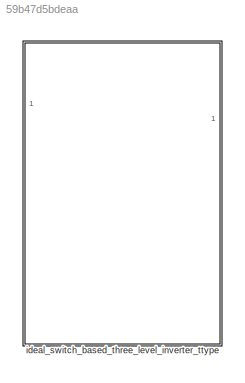
MODEL slx_59b47d5bdeaa
KIND library
CONFIG AbsTol = auto
CONFIG EnableMultiTasking = off
CONFIG FixedStep = auto
CONFIG MaxStep = auto
CONFIG MinStep = auto
CONFIG RelTol = 1e-3
CONFIG SampleTimeConstraint = Unconstrained
CONFIG SolverName = VariableStepAuto
CONFIG StartTime = 0.0
CONFIG StopTime = 10.0
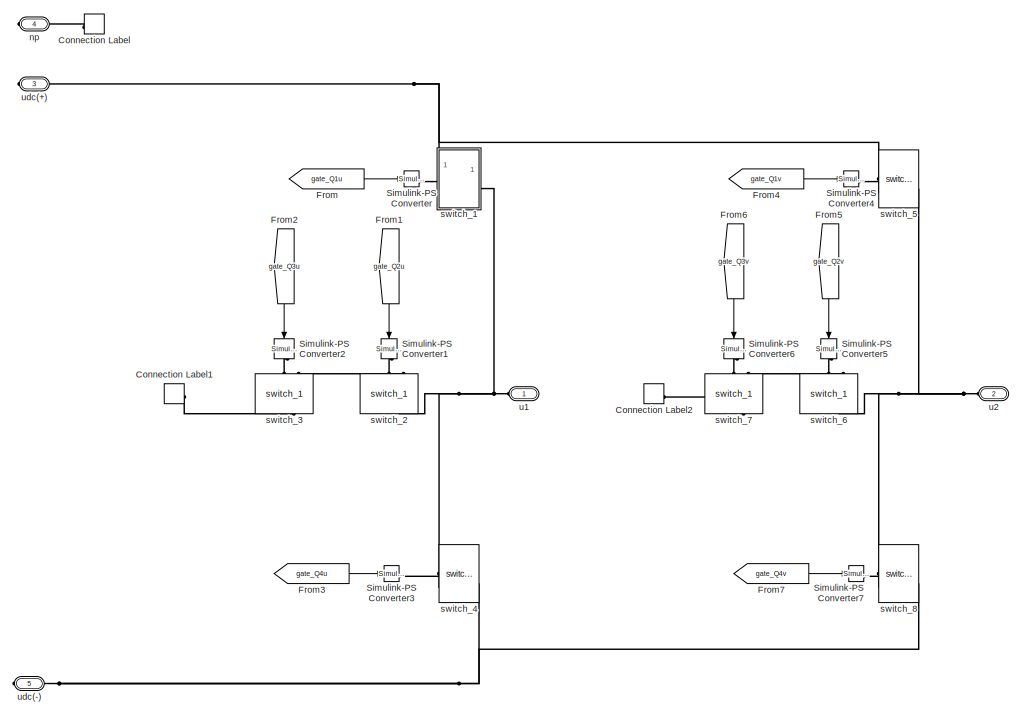
[diagram: ideal_switch_based_three_level_inverter_ttype - part 1/3, center side, full height]
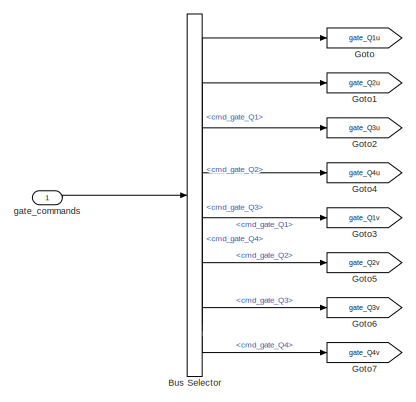
[diagram: ideal_switch_based_three_level_inverter_ttype - part 2/3, middle left region]
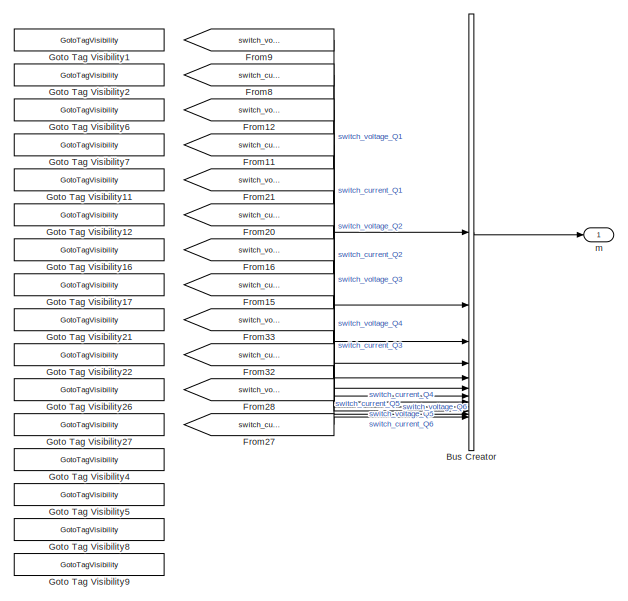
[diagram: ideal_switch_based_three_level_inverter_ttype - part 3/3, right side, full height]
BLOCK [SubSystem] ideal_switch_based_three_level_inverter_ttype
BLOCK [BusCreator] ideal_switch_based_three_level_inverter_ttype/Bus Creator
  DisplayOption = bar
  InheritFromInputs = on
  Inputs = 12
BLOCK [BusSelector] ideal_switch_based_three_level_inverter_ttype/Bus Selector
  OutputSignals = gate_cmds_ph1.cmd_gate_Q1,gate_cmds_ph1.cmd_gate_Q2,gate_cmds_ph1.cmd_gate_Q3,gate_cmds_ph1.cmd_gate_Q4,gate_cmds_ph2.cmd_gate_Q1,gate_cmds_ph2.cmd_gate_Q2,gate_cmds_ph2.cmd_gate_Q3,gate_cmds_ph2.cmd_gate_Q4
BLOCK [ConnectionLabel] ideal_switch_based_three_level_inverter_ttype/Connection Label
  Label = np
BLOCK [ConnectionLabel] ideal_switch_based_three_level_inverter_ttype/Connection Label1
  Label = np
  NameLocation = top
BLOCK [ConnectionLabel] ideal_switch_based_three_level_inverter_ttype/Connection Label2
  Label = np
  NameLocation = top
BLOCK [From] ideal_switch_based_three_level_inverter_ttype/From
  GotoTag = gate_Q1u
BLOCK [From] ideal_switch_based_three_level_inverter_ttype/From1
  GotoTag = gate_Q2u
  NameLocation = left
BLOCK [From] ideal_switch_based_three_level_inverter_ttype/From11
  GotoTag = switch_current_Q2
  TagVisibility = scoped
BLOCK [From] ideal_switch_based_three_level_inverter_ttype/From12
  GotoTag = switch_voltage_Q2
  TagVisibility = scoped
BLOCK [From] ideal_switch_based_three_level_inverter_ttype/From15
  GotoTag = switch_current_Q4
  TagVisibility = scoped
BLOCK [From] ideal_switch_based_three_level_inverter_ttype/From16
  GotoTag = switch_voltage_Q4
  TagVisibility = scoped
BLOCK [From] ideal_switch_based_three_level_inverter_ttype/From2
  GotoTag = gate_Q3u
  NameLocation = left
BLOCK [From] ideal_switch_based_three_level_inverter_ttype/From20
  GotoTag = switch_current_Q3
  TagVisibility = scoped
BLOCK [From] ideal_switch_based_three_level_inverter_ttype/From21
  GotoTag = switch_voltage_Q3
  TagVisibility = scoped
BLOCK [From] ideal_switch_based_three_level_inverter_ttype/From27
  GotoTag = switch_current_Q6
  TagVisibility = scoped
BLOCK [From] ideal_switch_based_three_level_inverter_ttype/From28
  GotoTag = switch_voltage_Q6
  TagVisibility = scoped
BLOCK [From] ideal_switch_based_three_level_inverter_ttype/From3
  GotoTag = gate_Q4u
  NameLocation = top
BLOCK [From] ideal_switch_based_three_level_inverter_ttype/From32
  GotoTag = switch_current_Q5
  TagVisibility = scoped
BLOCK [From] ideal_switch_based_three_level_inverter_ttype/From33
  GotoTag = switch_voltage_Q5
  TagVisibility = scoped
BLOCK [From] ideal_switch_based_three_level_inverter_ttype/From4
  GotoTag = gate_Q1v
BLOCK [From] ideal_switch_based_three_level_inverter_ttype/From5
  GotoTag = gate_Q2v
  NameLocation = left
BLOCK [From] ideal_switch_based_three_level_inverter_ttype/From6
  GotoTag = gate_Q3v
  NameLocation = left
BLOCK [From] ideal_switch_based_three_level_inverter_ttype/From7
  GotoTag = gate_Q4v
  NameLocation = top
BLOCK [From] ideal_switch_based_three_level_inverter_ttype/From8
  GotoTag = switch_current_Q1
BLOCK [From] ideal_switch_based_three_level_inverter_ttype/From9
  GotoTag = switch_voltage_Q1
BLOCK [Goto] ideal_switch_based_three_level_inverter_ttype/Goto
  GotoTag = gate_Q1u
BLOCK [GotoTagVisibility] ideal_switch_based_three_level_inverter_ttype/Goto Tag Visibility1
  GotoTag = switch_voltage_Q1
BLOCK [GotoTagVisibility] ideal_switch_based_three_level_inverter_ttype/Goto Tag Visibility11
  GotoTag = switch_voltage_Q3
BLOCK [GotoTagVisibility] ideal_switch_based_three_level_inverter_ttype/Goto Tag Visibility12
  GotoTag = switch_current_Q3
BLOCK [GotoTagVisibility] ideal_switch_based_three_level_inverter_ttype/Goto Tag Visibility16
  GotoTag = switch_voltage_Q4
BLOCK [GotoTagVisibility] ideal_switch_based_three_level_inverter_ttype/Goto Tag Visibility17
  GotoTag = switch_current_Q4
BLOCK [GotoTagVisibility] ideal_switch_based_three_level_inverter_ttype/Goto Tag Visibility2
  GotoTag = switch_current_Q1
BLOCK [GotoTagVisibility] ideal_switch_based_three_level_inverter_ttype/Goto Tag Visibility21
  GotoTag = switch_voltage_Q5
BLOCK [GotoTagVisibility] ideal_switch_based_three_level_inverter_ttype/Goto Tag Visibility22
  GotoTag = switch_current_Q5
BLOCK [GotoTagVisibility] ideal_switch_based_three_level_inverter_ttype/Goto Tag Visibility26
  GotoTag = switch_voltage_Q6
BLOCK [GotoTagVisibility] ideal_switch_based_three_level_inverter_ttype/Goto Tag Visibility27
  GotoTag = switch_current_Q6
BLOCK [GotoTagVisibility] ideal_switch_based_three_level_inverter_ttype/Goto Tag Visibility4
  GotoTag = switch_voltage_Q7
BLOCK [GotoTagVisibility] ideal_switch_based_three_level_inverter_ttype/Goto Tag Visibility5
  GotoTag = switch_current_Q7
BLOCK [GotoTagVisibility] ideal_switch_based_three_level_inverter_ttype/Goto Tag Visibility6
  GotoTag = switch_voltage_Q2
BLOCK [GotoTagVisibility] ideal_switch_based_three_level_inverter_ttype/Goto Tag Visibility7
  GotoTag = switch_current_Q2
BLOCK [GotoTagVisibility] ideal_switch_based_three_level_inverter_ttype/Goto Tag Visibility8
  GotoTag = switch_voltage_Q8
BLOCK [GotoTagVisibility] ideal_switch_based_three_level_inverter_ttype/Goto Tag Visibility9
  GotoTag = switch_current_Q8
BLOCK [Goto] ideal_switch_based_three_level_inverter_ttype/Goto1
  GotoTag = gate_Q2u
BLOCK [Goto] ideal_switch_based_three_level_inverter_ttype/Goto2
  GotoTag = gate_Q3u
BLOCK [Goto] ideal_switch_based_three_level_inverter_ttype/Goto3
  GotoTag = gate_Q1v
BLOCK [Goto] ideal_switch_based_three_level_inverter_ttype/Goto4
  GotoTag = gate_Q4u
BLOCK [Goto] ideal_switch_based_three_level_inverter_ttype/Goto5
  GotoTag = gate_Q2v
BLOCK [Goto] ideal_switch_based_three_level_inverter_ttype/Goto6
  GotoTag = gate_Q3v
BLOCK [Goto] ideal_switch_based_three_level_inverter_ttype/Goto7
  GotoTag = gate_Q4v
BLOCK [Reference] ideal_switch_based_three_level_inverter_ttype/Simulink-PS Converter  REF=nesl_utility/Simulink-PS
Converter
  SourceBlock = nesl_utility/Simulink-PS\nConverter
  SourceType = Simulink-PS\nConverter
BLOCK [Reference] ideal_switch_based_three_level_inverter_ttype/Simulink-PS Converter1  REF=nesl_utility/Simulink-PS
Converter
  NameLocation = top
  SourceBlock = nesl_utility/Simulink-PS\nConverter
  SourceType = Simulink-PS\nConverter
BLOCK [Reference] ideal_switch_based_three_level_inverter_ttype/Simulink-PS Converter2  REF=nesl_utility/Simulink-PS
Converter
  NameLocation = right
  SourceBlock = nesl_utility/Simulink-PS\nConverter
  SourceType = Simulink-PS\nConverter
BLOCK [Reference] ideal_switch_based_three_level_inverter_ttype/Simulink-PS Converter3  REF=nesl_utility/Simulink-PS
Converter
  NameLocation = top
  SourceBlock = nesl_utility/Simulink-PS\nConverter
  SourceType = Simulink-PS\nConverter
BLOCK [Reference] ideal_switch_based_three_level_inverter_ttype/Simulink-PS Converter4  REF=nesl_utility/Simulink-PS
Converter
  SourceBlock = nesl_utility/Simulink-PS\nConverter
  SourceType = Simulink-PS\nConverter
BLOCK [Reference] ideal_switch_based_three_level_inverter_ttype/Simulink-PS Converter5  REF=nesl_utility/Simulink-PS
Converter
  NameLocation = top
  SourceBlock = nesl_utility/Simulink-PS\nConverter
  SourceType = Simulink-PS\nConverter
BLOCK [Reference] ideal_switch_based_three_level_inverter_ttype/Simulink-PS Converter6  REF=nesl_utility/Simulink-PS
Converter
  NameLocation = right
  SourceBlock = nesl_utility/Simulink-PS\nConverter
  SourceType = Simulink-PS\nConverter
BLOCK [Reference] ideal_switch_based_three_level_inverter_ttype/Simulink-PS Converter7  REF=nesl_utility/Simulink-PS
Converter
  NameLocation = top
  SourceBlock = nesl_utility/Simulink-PS\nConverter
  SourceType = Simulink-PS\nConverter
BLOCK [Inport] ideal_switch_based_three_level_inverter_ttype/gate_commands
BLOCK [Outport] ideal_switch_based_three_level_inverter_ttype/m
BLOCK [PMIOPort] ideal_switch_based_three_level_inverter_ttype/np
  Port = 4
  Side = Right
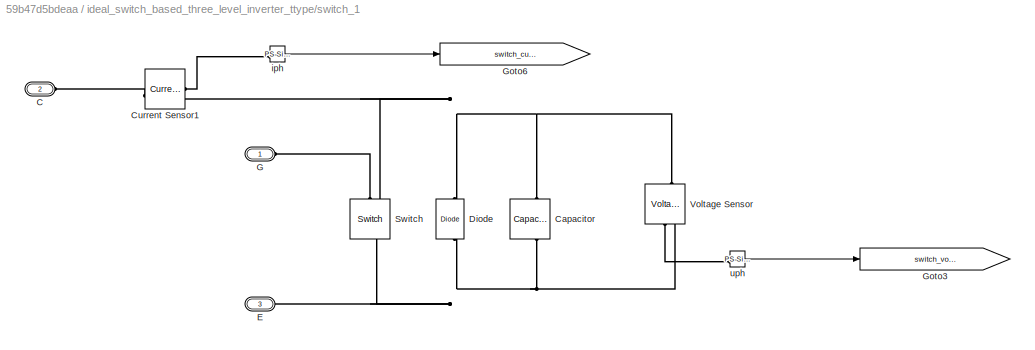
BLOCK [SubSystem] ideal_switch_based_three_level_inverter_ttype/switch_1
  NameLocation = right
  PortSchema = {"entries":[{"content":{"sides":[{"content":{"connectorIds":["LConn1"]},"type":"ConnectorPlacement.EquallySpacedRectSide","uuid":"9277da8d-d460-43e6-8478-dd662f15d226"},{"content":{"connectorIds":[],"side":"RIGHT"},"type":"ConnectorPlacement.EquallySpacedRectSide","uuid":"a7ece396-f1d9-4f4f-a05b-db1fc65d6e1d"},{"content":{"connectorIds":["LConn2"],"side":"TOP"},"type":"ConnectorPlacement.EquallySp...<+397ch>
BLOCK [PMIOPort] ideal_switch_based_three_level_inverter_ttype/switch_1/C
  NameLocation = top
  Port = 2
  Side = Left
BLOCK [Reference] ideal_switch_based_three_level_inverter_ttype/switch_1/Capacitor  REF=fl_lib/Electrical/Electrical Elements/Capacitor
  NameLocation = left
  SourceBlock = fl_lib/Electrical/Electrical Elements/Capacitor
  SourceType = Capacitor
BLOCK [Reference] ideal_switch_based_three_level_inverter_ttype/switch_1/Current Sensor1  REF=fl_lib/Electrical/Electrical Sensors/Current Sensor
  SourceBlock = fl_lib/Electrical/Electrical Sensors/Current Sensor
  SourceType = Current Sensor
BLOCK [Reference] ideal_switch_based_three_level_inverter_ttype/switch_1/Diode  REF=fl_lib/Electrical/Electrical Elements/Diode
  NameLocation = right
  SourceBlock = fl_lib/Electrical/Electrical Elements/Diode
  SourceType = Diode
BLOCK [PMIOPort] ideal_switch_based_three_level_inverter_ttype/switch_1/E
  NameLocation = top
  Port = 3
  Side = Right
BLOCK [PMIOPort] ideal_switch_based_three_level_inverter_ttype/switch_1/G
  NameLocation = top
  Side = Left
BLOCK [Goto] ideal_switch_based_three_level_inverter_ttype/switch_1/Goto3
  GotoTag = switch_voltage_Q1
  TagVisibility = scoped
BLOCK [Goto] ideal_switch_based_three_level_inverter_ttype/switch_1/Goto6
  GotoTag = switch_current_Q1
  TagVisibility = scoped
BLOCK [Reference] ideal_switch_based_three_level_inverter_ttype/switch_1/Switch  REF=fl_lib/Electrical/Electrical Elements/Switch
  NameLocation = left
  SourceBlock = fl_lib/Electrical/Electrical Elements/Switch
  SourceType = Switch
BLOCK [Reference] ideal_switch_based_three_level_inverter_ttype/switch_1/Voltage Sensor  REF=fl_lib/Electrical/Electrical Sensors/Voltage Sensor
  NameLocation = right
  SourceBlock = fl_lib/Electrical/Electrical Sensors/Voltage Sensor
  SourceType = Voltage Sensor
BLOCK [Reference] ideal_switch_based_three_level_inverter_ttype/switch_1/iph  REF=nesl_utility/PS-Simulink
Converter
  SourceBlock = nesl_utility/PS-Simulink\nConverter
  SourceType = PS-Simulink\nConverter
BLOCK [Reference] ideal_switch_based_three_level_inverter_ttype/switch_1/uph  REF=nesl_utility/PS-Simulink
Converter
  SourceBlock = nesl_utility/PS-Simulink\nConverter
  SourceType = PS-Simulink\nConverter
BLOCK [Reference] ideal_switch_based_three_level_inverter_ttype/switch_2  REF=$bdroot/ideal_switch_based_three_level_inverter_ttype/switch_1
  SourceBlock = $bdroot/ideal_switch_based_three_level_inverter_ttype/switch_1
  SourceType = SubSystem
BLOCK [Reference] ideal_switch_based_three_level_inverter_ttype/switch_3  REF=$bdroot/ideal_switch_based_three_level_inverter_ttype/switch_1
  SourceBlock = $bdroot/ideal_switch_based_three_level_inverter_ttype/switch_1
  SourceType = SubSystem
BLOCK [Reference] ideal_switch_based_three_level_inverter_ttype/switch_4  REF=$bdroot/ideal_switch_based_three_level_inverter_ttype/switch_1
  NameLocation = right
  SourceBlock = $bdroot/ideal_switch_based_three_level_inverter_ttype/switch_1
  SourceType = SubSystem
BLOCK [Reference] ideal_switch_based_three_level_inverter_ttype/switch_5  REF=$bdroot/ideal_switch_based_three_level_inverter_ttype/switch_1
  NameLocation = right
  SourceBlock = $bdroot/ideal_switch_based_three_level_inverter_ttype/switch_1
  SourceType = SubSystem
BLOCK [Reference] ideal_switch_based_three_level_inverter_ttype/switch_6  REF=$bdroot/ideal_switch_based_three_level_inverter_ttype/switch_1
  SourceBlock = $bdroot/ideal_switch_based_three_level_inverter_ttype/switch_1
  SourceType = SubSystem
BLOCK [Reference] ideal_switch_based_three_level_inverter_ttype/switch_7  REF=$bdroot/ideal_switch_based_three_level_inverter_ttype/switch_1
  SourceBlock = $bdroot/ideal_switch_based_three_level_inverter_ttype/switch_1
  SourceType = SubSystem
BLOCK [Reference] ideal_switch_based_three_level_inverter_ttype/switch_8  REF=$bdroot/ideal_switch_based_three_level_inverter_ttype/switch_1
  NameLocation = right
  SourceBlock = $bdroot/ideal_switch_based_three_level_inverter_ttype/switch_1
  SourceType = SubSystem
BLOCK [PMIOPort] ideal_switch_based_three_level_inverter_ttype/u1
  Side = Left
BLOCK [PMIOPort] ideal_switch_based_three_level_inverter_ttype/u2
  Port = 2
  Side = Left
BLOCK [PMIOPort] ideal_switch_based_three_level_inverter_ttype/udc(+)
  Port = 3
  Side = Right
BLOCK [PMIOPort] ideal_switch_based_three_level_inverter_ttype/udc(-)
  Port = 5
  Side = Right
LINE ideal_switch_based_three_level_inverter_ttype/Bus Creator:1 -> ideal_switch_based_three_level_inverter_ttype/m:1
LINE ideal_switch_based_three_level_inverter_ttype/Bus Selector:1 -> ideal_switch_based_three_level_inverter_ttype/Goto:1
LINE ideal_switch_based_three_level_inverter_ttype/Bus Selector:2 -> ideal_switch_based_three_level_inverter_ttype/Goto1:1
LINE ideal_switch_based_three_level_inverter_ttype/Bus Selector:3 -> ideal_switch_based_three_level_inverter_ttype/Goto2:1
LINE ideal_switch_based_three_level_inverter_ttype/Bus Selector:4 -> ideal_switch_based_three_level_inverter_ttype/Goto4:1
LINE ideal_switch_based_three_level_inverter_ttype/Bus Selector:5 -> ideal_switch_based_three_level_inverter_ttype/Goto3:1
LINE ideal_switch_based_three_level_inverter_ttype/Bus Selector:6 -> ideal_switch_based_three_level_inverter_ttype/Goto5:1
LINE ideal_switch_based_three_level_inverter_ttype/Bus Selector:7 -> ideal_switch_based_three_level_inverter_ttype/Goto6:1
LINE ideal_switch_based_three_level_inverter_ttype/Bus Selector:8 -> ideal_switch_based_three_level_inverter_ttype/Goto7:1
LINE ideal_switch_based_three_level_inverter_ttype/From11:1 -> ideal_switch_based_three_level_inverter_ttype/Bus Creator:4
LINE ideal_switch_based_three_level_inverter_ttype/From12:1 -> ideal_switch_based_three_level_inverter_ttype/Bus Creator:3
LINE ideal_switch_based_three_level_inverter_ttype/From15:1 -> ideal_switch_based_three_level_inverter_ttype/Bus Creator:8
LINE ideal_switch_based_three_level_inverter_ttype/From16:1 -> ideal_switch_based_three_level_inverter_ttype/Bus Creator:7
LINE ideal_switch_based_three_level_inverter_ttype/From1:1 -> ideal_switch_based_three_level_inverter_ttype/Simulink-PS Converter1:1
LINE ideal_switch_based_three_level_inverter_ttype/From20:1 -> ideal_switch_based_three_level_inverter_ttype/Bus Creator:6
LINE ideal_switch_based_three_level_inverter_ttype/From21:1 -> ideal_switch_based_three_level_inverter_ttype/Bus Creator:5
LINE ideal_switch_based_three_level_inverter_ttype/From27:1 -> ideal_switch_based_three_level_inverter_ttype/Bus Creator:12
LINE ideal_switch_based_three_level_inverter_ttype/From28:1 -> ideal_switch_based_three_level_inverter_ttype/Bus Creator:11
LINE ideal_switch_based_three_level_inverter_ttype/From2:1 -> ideal_switch_based_three_level_inverter_ttype/Simulink-PS Converter2:1
LINE ideal_switch_based_three_level_inverter_ttype/From32:1 -> ideal_switch_based_three_level_inverter_ttype/Bus Creator:10
LINE ideal_switch_based_three_level_inverter_ttype/From33:1 -> ideal_switch_based_three_level_inverter_ttype/Bus Creator:9
LINE ideal_switch_based_three_level_inverter_ttype/From3:1 -> ideal_switch_based_three_level_inverter_ttype/Simulink-PS Converter3:1
LINE ideal_switch_based_three_level_inverter_ttype/From4:1 -> ideal_switch_based_three_level_inverter_ttype/Simulink-PS Converter4:1
LINE ideal_switch_based_three_level_inverter_ttype/From5:1 -> ideal_switch_based_three_level_inverter_ttype/Simulink-PS Converter5:1
LINE ideal_switch_based_three_level_inverter_ttype/From6:1 -> ideal_switch_based_three_level_inverter_ttype/Simulink-PS Converter6:1
LINE ideal_switch_based_three_level_inverter_ttype/From7:1 -> ideal_switch_based_three_level_inverter_ttype/Simulink-PS Converter7:1
LINE ideal_switch_based_three_level_inverter_ttype/From8:1 -> ideal_switch_based_three_level_inverter_ttype/Bus Creator:2
LINE ideal_switch_based_three_level_inverter_ttype/From9:1 -> ideal_switch_based_three_level_inverter_ttype/Bus Creator:1
LINE ideal_switch_based_three_level_inverter_ttype/From:1 -> ideal_switch_based_three_level_inverter_ttype/Simulink-PS Converter:1
LINE ideal_switch_based_three_level_inverter_ttype/gate_commands:1 -> ideal_switch_based_three_level_inverter_ttype/Bus Selector:1
LINE ideal_switch_based_three_level_inverter_ttype/switch_1/iph:1 -> ideal_switch_based_three_level_inverter_ttype/switch_1/Goto6:1
LINE ideal_switch_based_three_level_inverter_ttype/switch_1/uph:1 -> ideal_switch_based_three_level_inverter_ttype/switch_1/Goto3:1
PLINE ideal_switch_based_three_level_inverter_ttype/Connection Label1:LConn1 -- ideal_switch_based_three_level_inverter_ttype/switch_3:RConn1
PLINE ideal_switch_based_three_level_inverter_ttype/Connection Label2:LConn1 -- ideal_switch_based_three_level_inverter_ttype/switch_7:RConn1
PLINE ideal_switch_based_three_level_inverter_ttype/Connection Label:LConn1 -- ideal_switch_based_three_level_inverter_ttype/np:RConn1
PLINE ideal_switch_based_three_level_inverter_ttype/Simulink-PS Converter1:RConn1 -- ideal_switch_based_three_level_inverter_ttype/switch_2:LConn1
PLINE ideal_switch_based_three_level_inverter_ttype/Simulink-PS Converter2:RConn1 -- ideal_switch_based_three_level_inverter_ttype/switch_3:LConn1
PLINE ideal_switch_based_three_level_inverter_ttype/Simulink-PS Converter3:RConn1 -- ideal_switch_based_three_level_inverter_ttype/switch_4:LConn1
PLINE ideal_switch_based_three_level_inverter_ttype/Simulink-PS Converter4:RConn1 -- ideal_switch_based_three_level_inverter_ttype/switch_5:LConn1
PLINE ideal_switch_based_three_level_inverter_ttype/Simulink-PS Converter5:RConn1 -- ideal_switch_based_three_level_inverter_ttype/switch_6:LConn1
PLINE ideal_switch_based_three_level_inverter_ttype/Simulink-PS Converter6:RConn1 -- ideal_switch_based_three_level_inverter_ttype/switch_7:LConn1
PLINE ideal_switch_based_three_level_inverter_ttype/Simulink-PS Converter7:RConn1 -- ideal_switch_based_three_level_inverter_ttype/switch_8:LConn1
PLINE ideal_switch_based_three_level_inverter_ttype/Simulink-PS Converter:RConn1 -- ideal_switch_based_three_level_inverter_ttype/switch_1:LConn1
PLINE ideal_switch_based_three_level_inverter_ttype/switch_1/C:RConn1 -- ideal_switch_based_three_level_inverter_ttype/switch_1/Current Sensor1:LConn1
PNET net1: ideal_switch_based_three_level_inverter_ttype/switch_1/Capacitor:LConn1 -- ideal_switch_based_three_level_inverter_ttype/switch_1/Current Sensor1:RConn2 -- ideal_switch_based_three_level_inverter_ttype/switch_1/Diode:RConn1 -- ideal_switch_based_three_level_inverter_ttype/switch_1/Switch:RConn2 -- ideal_switch_based_three_level_inverter_ttype/switch_1/Voltage Sensor:LConn1
PNET net2: ideal_switch_based_three_level_inverter_ttype/switch_1/Capacitor:RConn1 -- ideal_switch_based_three_level_inverter_ttype/switch_1/Diode:LConn1 -- ideal_switch_based_three_level_inverter_ttype/switch_1/E:RConn1 -- ideal_switch_based_three_level_inverter_ttype/switch_1/Switch:LConn1 -- ideal_switch_based_three_level_inverter_ttype/switch_1/Voltage Sensor:RConn2
PLINE ideal_switch_based_three_level_inverter_ttype/switch_1/Current Sensor1:RConn1 -- ideal_switch_based_three_level_inverter_ttype/switch_1/iph:LConn1
PLINE ideal_switch_based_three_level_inverter_ttype/switch_1/G:RConn1 -- ideal_switch_based_three_level_inverter_ttype/switch_1/Switch:RConn1
PLINE ideal_switch_based_three_level_inverter_ttype/switch_1/Voltage Sensor:RConn1 -- ideal_switch_based_three_level_inverter_ttype/switch_1/uph:LConn1
PNET net3: ideal_switch_based_three_level_inverter_ttype/switch_1:LConn2 -- ideal_switch_based_three_level_inverter_ttype/switch_5:LConn2 -- ideal_switch_based_three_level_inverter_ttype/udc(+):RConn1
PNET net4: ideal_switch_based_three_level_inverter_ttype/switch_1:RConn1 -- ideal_switch_based_three_level_inverter_ttype/switch_2:RConn1 -- ideal_switch_based_three_level_inverter_ttype/switch_4:LConn2 -- ideal_switch_based_three_level_inverter_ttype/u1:RConn1
PLINE ideal_switch_based_three_level_inverter_ttype/switch_2:LConn2 -- ideal_switch_based_three_level_inverter_ttype/switch_3:LConn2
PNET net5: ideal_switch_based_three_level_inverter_ttype/switch_4:RConn1 -- ideal_switch_based_three_level_inverter_ttype/switch_8:RConn1 -- ideal_switch_based_three_level_inverter_ttype/udc(-):RConn1
PNET net6: ideal_switch_based_three_level_inverter_ttype/switch_5:RConn1 -- ideal_switch_based_three_level_inverter_ttype/switch_6:RConn1 -- ideal_switch_based_three_level_inverter_ttype/switch_8:LConn2 -- ideal_switch_based_three_level_inverter_ttype/u2:RConn1
PLINE ideal_switch_based_three_level_inverter_ttype/switch_6:LConn2 -- ideal_switch_based_three_level_inverter_ttype/switch_7:LConn2
note: PNET lines group multi-terminal physical nets as a canonical sorted terminal list (undirected conserving connections); 2-terminal nets keep the pairwise PLINE form
